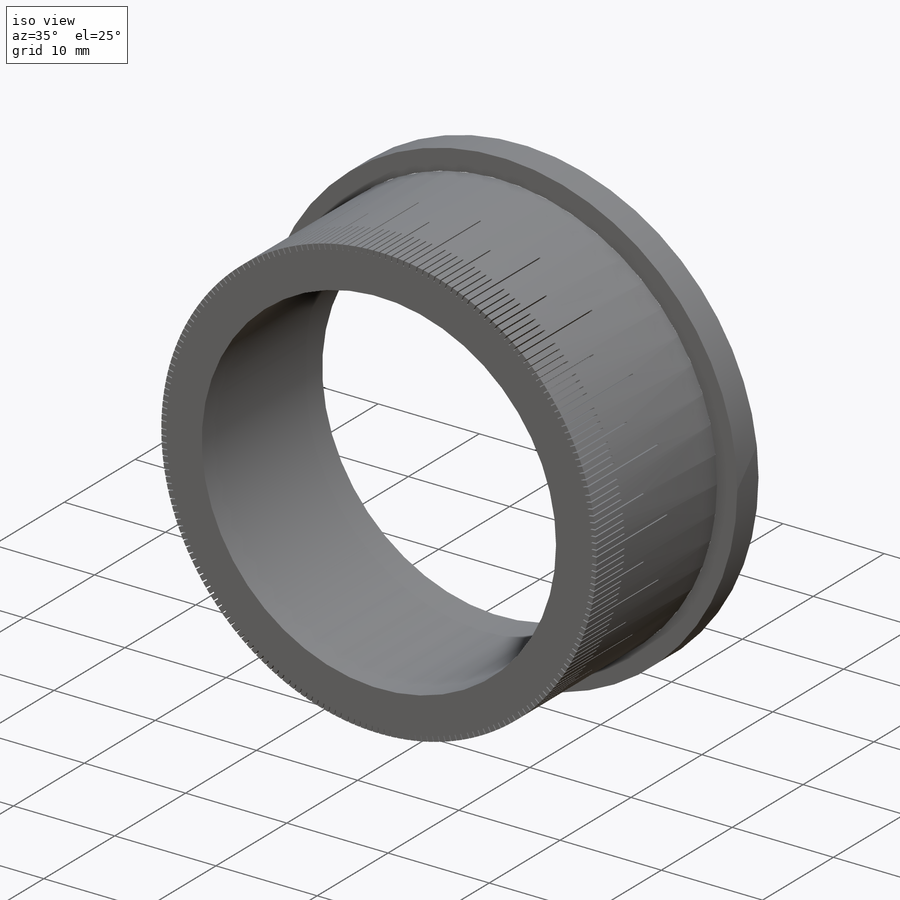
[diagram: iso view]
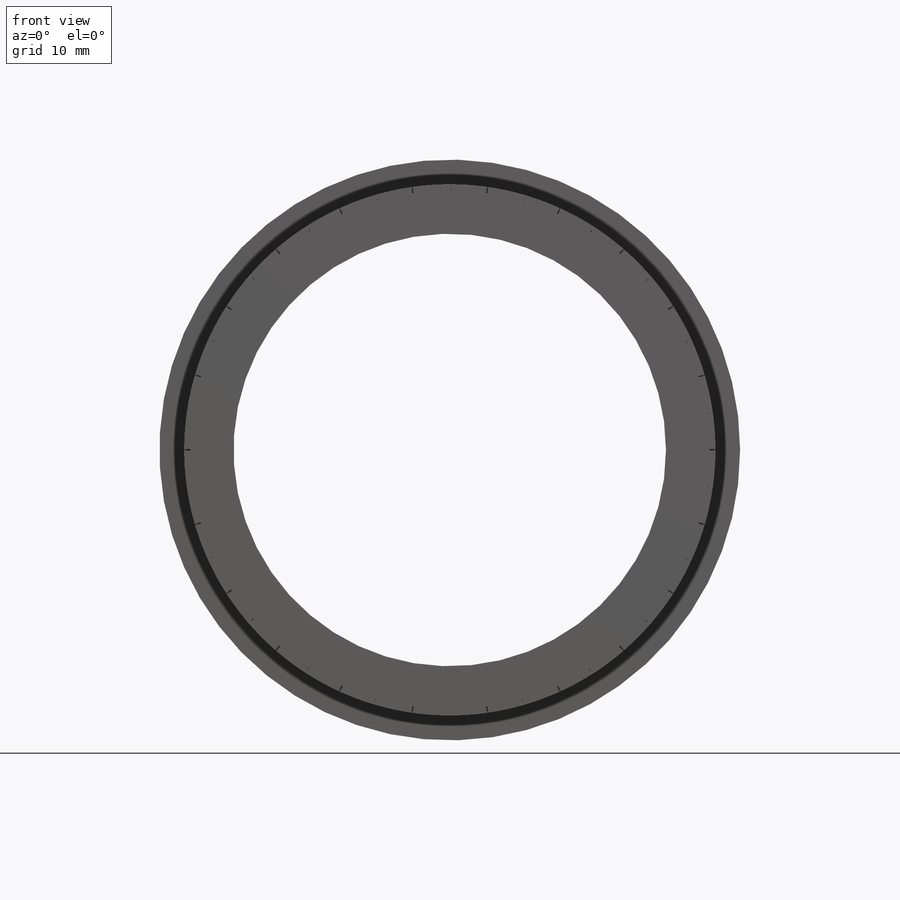
[diagram: front view]
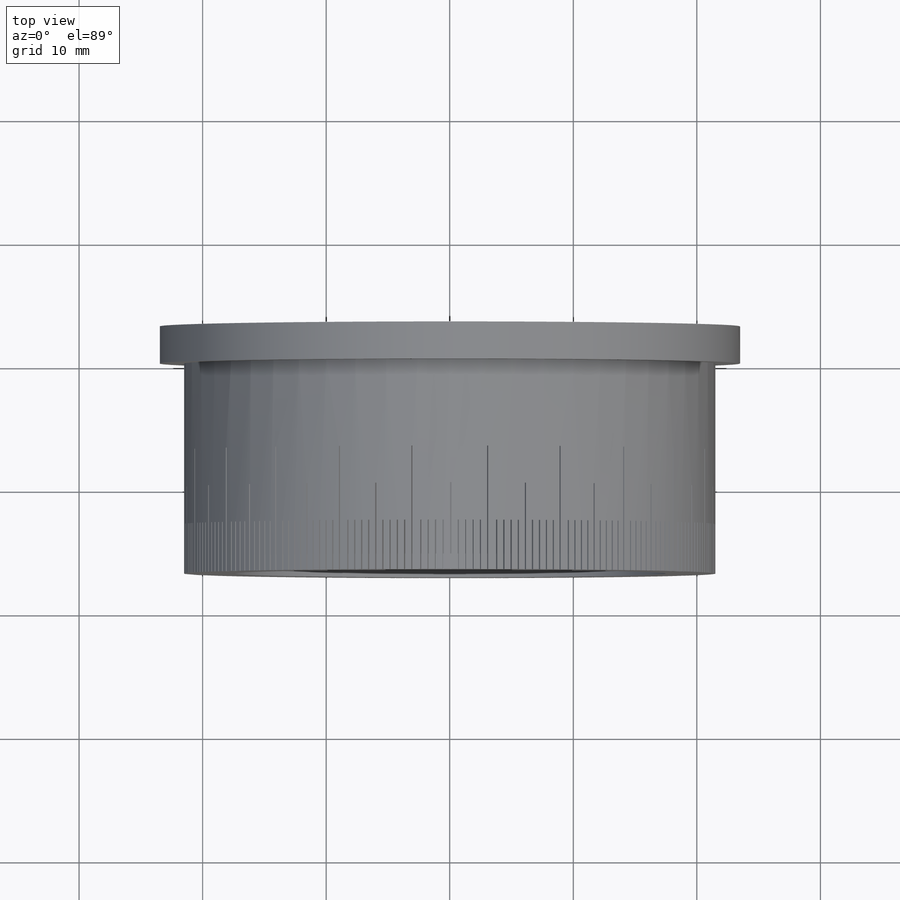
[diagram: top view]
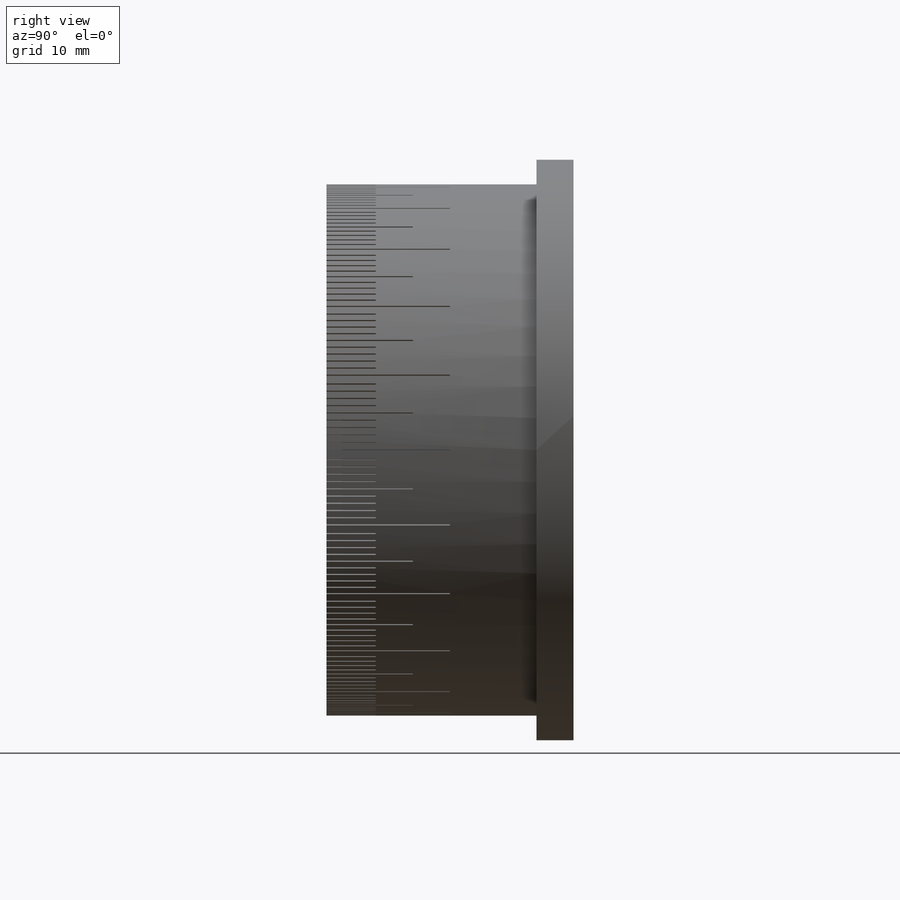
[diagram: right view]
SOLIDWORKS PART (.sldprt)
format: sldprt  version: not decoded by parser v0  size: 1,148,416 bytes
history: native  units: mm
features: sketch x5, plane x4, material x1, extrude x1, cut_extrude x1, pattern_circular x1 (+10 scaffold rows collapsed)
feature tree (23):
  scaffold x10  (default folders/planes/origin — collapsed)
  material  "1.0715 (11SMn30)"
  plane  "Přední rovina"
  plane  "Horní rovina"
  plane  "Pravá rovina"
  sketch  "Skica1"  dims[D1=43.0mm D2=10.0mm]
  extrude  "Přidat vysunutím1"  Depth=17mm
  sketch  "Skica2"  dims[D1=40.0mm]
  sketch  "Skica3"  dims[D1=35.0mm]
  cut_extrude  "Odebrat vysunutím1"  [1 undecoded]
  plane  "Rovina2"  Offset=30mm
  sketch  "Skica5"  dims[c1.D1=~0.680938mm c2.D1=270.0deg c3.D1=0.05mm c3.D2=14.0mm c4.D2=90.0deg c5.D2=0.05mm c5.D3=10.0mm c5.D4=4.0mm c5.D5=0.5mm c5.D6=0.1mm c5.D7=0.1mm c5.D8=0.1mm c5.D9=0.1mm c5.D10=0.5mm c5.D11=0.5mm c5.D12=7.0mm c5.D13=0.5mm c5.D14=0.5mm c5.D15=0.5mm c5.D16=0.5mm c5.D17=0.5mm c5.D18=0.5mm c5.D1=0.5mm]
  pattern_circular  "Kruhové pole1"  Count=22 Angle=16.363636deg
  sketch  "Skica6"  dims[c1.D1=43.0mm c2.D1=3.0mm c2.D5=2.0mm c2.D6=10.0mm c2.D7=5.0mm]
decode coverage: 7 of 8 modeling features carry decoded parameters
note: ~ marks probable driven/reference dimensions
note: 1 parameter value undecoded
note: suppression state not decoded; provenance and decode notes live in map.json
